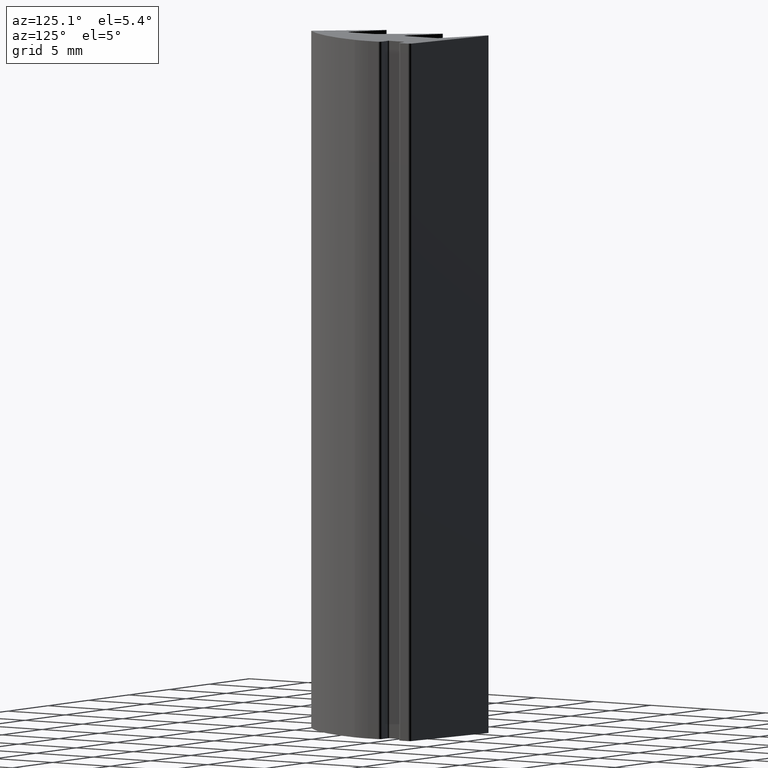
[diagram: clean part render]
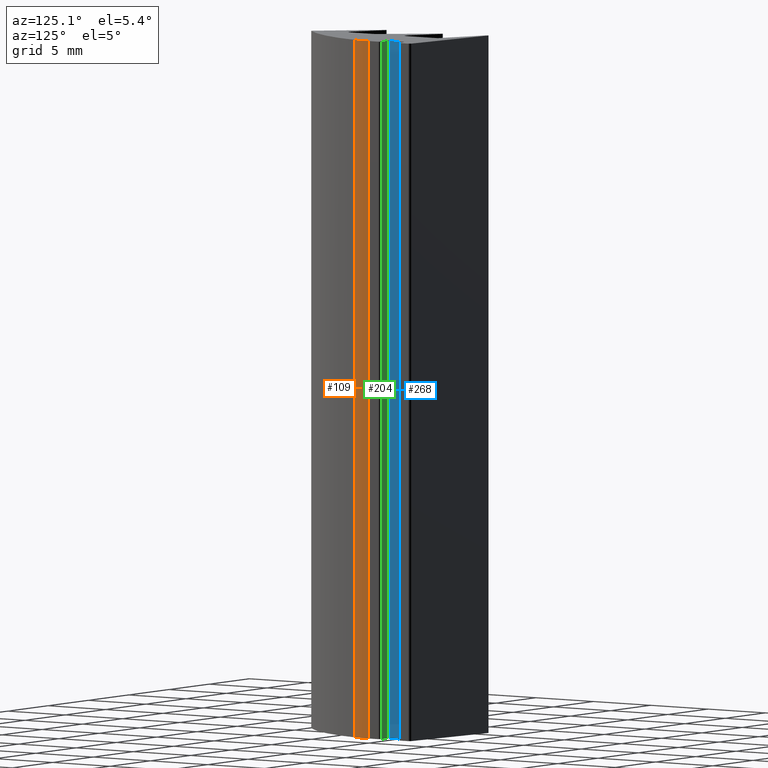
[diagram: same view with three faces highlighted in distinct colors, each labeled with its STEP entity id]
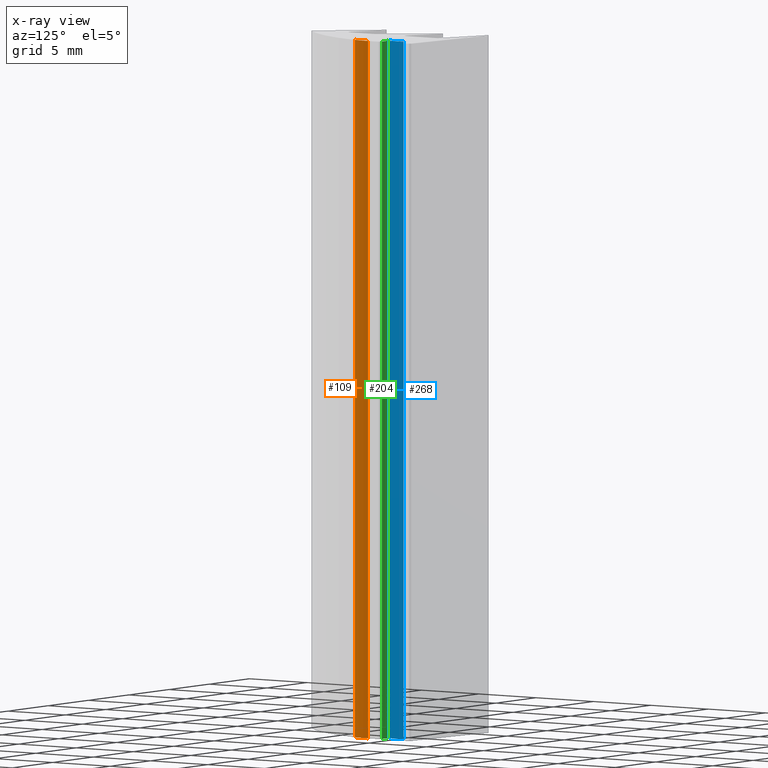
[diagram: x-ray of the same camera — body ghosted, the three highlighted faces saturated]
A machine part, auxiliary view with three faces highlighted in distinct colors.
The next image is the same camera in x-ray (body ghosted, the three faces saturated) — at least one of them is partly hidden behind the body in this view.
Their STEP definitions:

[orange] entity #109 — the highlighted cylindrical surface (partial cylindrical patch) has radius 5.1367 mm, axis along (0, 0, 1).
#49=CARTESIAN_POINT('',(3.824155342394557,6.483788447085610,0.0));
#50=VERTEX_POINT('',#49);
#58=CARTESIAN_POINT('',(3.824155342394557,6.483788447085610,50.0));
#59=VERTEX_POINT('',#58);
#60=CARTESIAN_POINT('',(3.824155342394557,6.483788447085610,0.0));
#61=DIRECTION('',(0.0,0.0,1.0));
#62=VECTOR('',#61,50.0);
#63=LINE('',#60,#62);
#64=EDGE_CURVE('',#50,#59,#63,.T.);
#77=CARTESIAN_POINT('',(-1.155222494464720,7.745190931734269,0.0));
#78=DIRECTION('',(0.0,0.0,1.0));
#79=DIRECTION('',(0.969379286525517,-0.245568318101663,0.0));
#80=AXIS2_PLACEMENT_3D('',#77,#78,#79);
#81=CYLINDRICAL_SURFACE('',#80,5.136666221440048);
#82=CARTESIAN_POINT('',(3.981443726975328,7.745190931734234,0.0));
#83=VERTEX_POINT('',#82);
#84=CARTESIAN_POINT('',(-1.155222494464720,7.745190931734270,0.0));
#85=DIRECTION('',(0.0,0.0,1.0));
#86=DIRECTION('',(0.969379286525517,-0.245568318101663,0.0));
#87=AXIS2_PLACEMENT_3D('',#84,#85,#86);
#88=CIRCLE('',#87,5.136666221440048);
#89=EDGE_CURVE('',#50,#83,#88,.T.);
#90=ORIENTED_EDGE('',*,*,#89,.T.);
#91=CARTESIAN_POINT('',(3.981443726975328,7.745190931734234,50.0));
#92=VERTEX_POINT('',#91);
#93=CARTESIAN_POINT('',(3.981443726975328,7.745190931734234,0.0));
#94=DIRECTION('',(0.0,0.0,1.0));
#95=VECTOR('',#94,50.0);
#96=LINE('',#93,#95);
#97=EDGE_CURVE('',#83,#92,#96,.T.);
#98=ORIENTED_EDGE('',*,*,#97,.T.);
#99=CARTESIAN_POINT('',(-1.155222494464720,7.745190931734270,50.0));
#100=DIRECTION('',(0.0,0.0,1.0));
#101=DIRECTION('',(0.969379286525517,-0.245568318101663,0.0));
#102=AXIS2_PLACEMENT_3D('',#99,#100,#101);
#103=CIRCLE('',#102,5.136666221440048);
#104=EDGE_CURVE('',#59,#92,#103,.T.);
#105=ORIENTED_EDGE('',*,*,#104,.F.);
#106=ORIENTED_EDGE('',*,*,#64,.F.);
#107=EDGE_LOOP('',(#90,#98,#105,#106));
#108=FACE_OUTER_BOUND('',#107,.T.);
#109=ADVANCED_FACE('',(#108),#81,.T.);

[blue] entity #268 — the highlighted planar face has unit normal (1, 0, 0).
#210=CARTESIAN_POINT('',(2.987680067650241,8.921382036562754,0.0));
#211=VERTEX_POINT('',#210);
#219=CARTESIAN_POINT('',(2.987680067650241,8.921382036562754,50.0));
#220=VERTEX_POINT('',#219);
#221=CARTESIAN_POINT('',(2.987680067650241,8.921382036562754,0.0));
#222=DIRECTION('',(0.0,0.0,1.0));
#223=VECTOR('',#222,50.0);
#224=LINE('',#221,#223);
#225=EDGE_CURVE('',#211,#220,#224,.T.);
#238=CARTESIAN_POINT('',(2.987680067650241,8.921382036562754,0.0));
#239=DIRECTION('',(1.0,0.0,0.0));
#240=DIRECTION('',(0.0,1.0,0.0));
#241=AXIS2_PLACEMENT_3D('',#238,#239,#240);
#242=PLANE('',#241);
#243=CARTESIAN_POINT('',(2.987680067650241,10.156344474462855,0.0));
#244=VERTEX_POINT('',#243);
#245=CARTESIAN_POINT('',(2.987680067650241,8.921382036562754,0.0));
#246=DIRECTION('',(0.0,1.0,0.0));
#247=VECTOR('',#246,1.234962437900101);
#248=LINE('',#245,#247);
#249=EDGE_CURVE('',#211,#244,#248,.T.);
#250=ORIENTED_EDGE('',*,*,#249,.T.);
#251=CARTESIAN_POINT('',(2.987680067650241,10.156344474462855,50.0));
#252=VERTEX_POINT('',#251);
#253=CARTESIAN_POINT('',(2.987680067650241,10.156344474462855,0.0));
#254=DIRECTION('',(0.0,0.0,1.0));
#255=VECTOR('',#254,50.0);
#256=LINE('',#253,#255);
#257=EDGE_CURVE('',#244,#252,#256,.T.);
#258=ORIENTED_EDGE('',*,*,#257,.T.);
#259=CARTESIAN_POINT('',(2.987680067650241,8.921382036562754,50.0));
#260=DIRECTION('',(0.0,1.0,0.0));
#261=VECTOR('',#260,1.234962437900101);
#262=LINE('',#259,#261);
#263=EDGE_CURVE('',#220,#252,#262,.T.);
#264=ORIENTED_EDGE('',*,*,#263,.F.);
#265=ORIENTED_EDGE('',*,*,#225,.F.);
#266=EDGE_LOOP('',(#250,#258,#264,#265));
#267=FACE_OUTER_BOUND('',#266,.T.);
#268=ADVANCED_FACE('',(#267),#242,.T.);

[green] entity #204 — the highlighted planar face has unit normal (0, 1, 0).
#146=CARTESIAN_POINT('',(3.781443726976127,8.821382036563154,0.0));
#147=VERTEX_POINT('',#146);
#155=CARTESIAN_POINT('',(3.781443726976127,8.821382036563154,50.0));
#156=VERTEX_POINT('',#155);
#157=CARTESIAN_POINT('',(3.781443726976127,8.821382036563154,0.0));
#158=DIRECTION('',(0.0,0.0,1.0));
#159=VECTOR('',#158,50.0);
#160=LINE('',#157,#159);
#161=EDGE_CURVE('',#147,#156,#160,.T.);
#174=CARTESIAN_POINT('',(3.781443726976127,8.821382036563154,0.0));
#175=DIRECTION('',(0.0,1.0,0.0));
#176=DIRECTION('',(-1.0,0.0,0.0));
#177=AXIS2_PLACEMENT_3D('',#174,#175,#176);
#178=PLANE('',#177);
#179=CARTESIAN_POINT('',(3.087680067649842,8.821382036563154,0.0));
#180=VERTEX_POINT('',#179);
#181=CARTESIAN_POINT('',(3.781443726976127,8.821382036563154,0.0));
#182=DIRECTION('',(-1.0,0.0,0.0));
#183=VECTOR('',#182,0.693763659326284);
#184=LINE('',#181,#183);
#185=EDGE_CURVE('',#147,#180,#184,.T.);
#186=ORIENTED_EDGE('',*,*,#185,.T.);
#187=CARTESIAN_POINT('',(3.087680067649842,8.821382036563154,50.0));
#188=VERTEX_POINT('',#187);
#189=CARTESIAN_POINT('',(3.087680067649842,8.821382036563154,0.0));
#190=DIRECTION('',(0.0,0.0,1.0));
#191=VECTOR('',#190,50.0);
#192=LINE('',#189,#191);
#193=EDGE_CURVE('',#180,#188,#192,.T.);
#194=ORIENTED_EDGE('',*,*,#193,.T.);
#195=CARTESIAN_POINT('',(3.781443726976127,8.821382036563154,50.0));
#196=DIRECTION('',(-1.0,0.0,0.0));
#197=VECTOR('',#196,0.693763659326284);
#198=LINE('',#195,#197);
#199=EDGE_CURVE('',#156,#188,#198,.T.);
#200=ORIENTED_EDGE('',*,*,#199,.F.);
#201=ORIENTED_EDGE('',*,*,#161,.F.);
#202=EDGE_LOOP('',(#186,#194,#200,#201));
#203=FACE_OUTER_BOUND('',#202,.T.);
#204=ADVANCED_FACE('',(#203),#178,.T.);